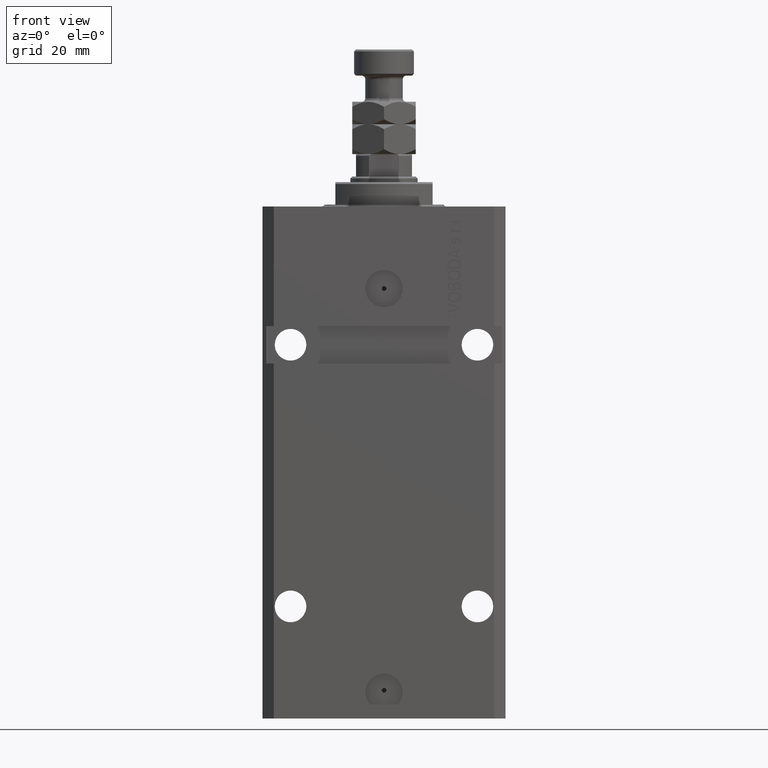
[diagram: clean part render]
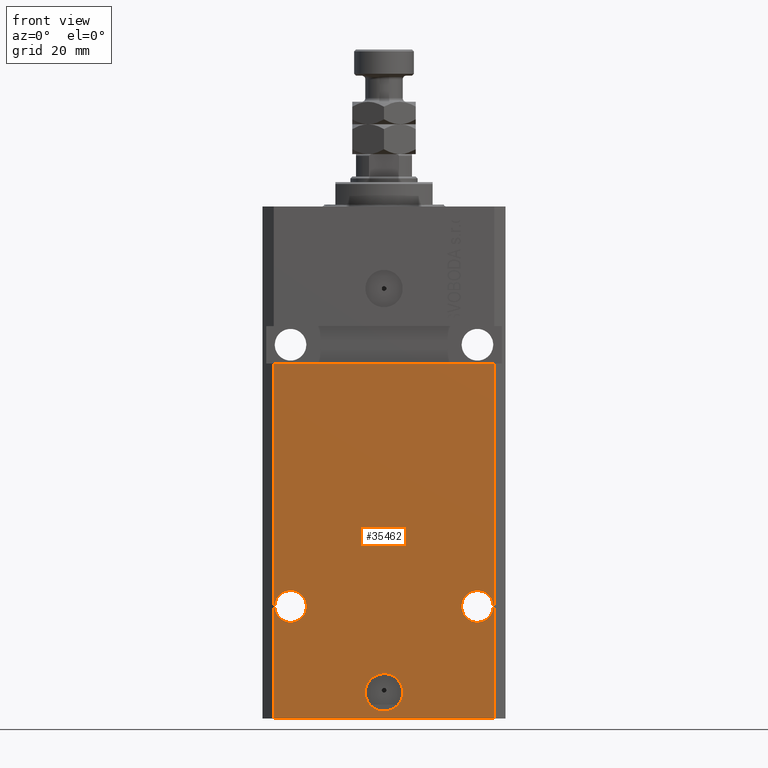
[diagram: same view with one face highlighted and labeled with its STEP entity id]
A machine part, front view. The second image highlights one B-rep face of the part: STEP entity #35462.
In plain terms, the highlighted planar face has unit normal (0, -1, 0).
Its self-contained STEP definition (entity closure, byte-faithful):
#142 = LINE ( 'NONE', #33032, #7918 ) ;
#614 = DIRECTION ( 'NONE',  ( 0.000000000000000000, 0.000000000000000000, 1.000000000000000000 ) ) ;
#779 = AXIS2_PLACEMENT_3D ( 'NONE', #14859, #37272, #4374 ) ;
#1051 = CIRCLE ( 'NONE', #17043, 4.249999999989050536 ) ;
#1056 = CIRCLE ( 'NONE', #15507, 5.000000000000006217 ) ;
#1285 = CARTESIAN_POINT ( 'NONE',  ( 20.75000000001096012, -22.49999999999949196, -107.0000000000000000 ) ) ;
#1808 = CARTESIAN_POINT ( 'NONE',  ( 2.646188353185214061E-15, -22.49999999999949551, -130.0000000000000000 ) ) ;
#2261 = EDGE_CURVE ( 'NONE', #24339, #13529, #24540, .T. ) ;
#2898 = ORIENTED_EDGE ( 'NONE', *, *, #43312, .F. ) ;
#3728 = DIRECTION ( 'NONE',  ( 1.176083712526788232E-16, -1.000000000000000000, 0.000000000000000000 ) ) ;
#3957 = CARTESIAN_POINT ( 'NONE',  ( -25.00000000000000355, -22.49999999999949907, -107.0000000000000000 ) ) ;
#4374 = DIRECTION ( 'NONE',  ( 1.000000000000000000, 0.000000000000000000, 0.000000000000000000 ) ) ;
#4443 = CARTESIAN_POINT ( 'NONE',  ( -29.49999999999650413, -22.49999999999949907, -137.0000000000000000 ) ) ;
#5047 = DIRECTION ( 'NONE',  ( 1.000000000000000000, 0.000000000000000000, 0.000000000000000000 ) ) ;
#5968 = CARTESIAN_POINT ( 'NONE',  ( -32.49999999999650413, -22.49999999999949907, -41.99999999999999289 ) ) ;
#6515 = EDGE_CURVE ( 'NONE', #34668, #42616, #30671, .T. ) ;
#6574 = AXIS2_PLACEMENT_3D ( 'NONE', #3957, #3728, #33281 ) ;
#6690 = DIRECTION ( 'NONE',  ( 0.000000000000000000, 0.000000000000000000, 1.000000000000000000 ) ) ;
#6838 = FACE_OUTER_BOUND ( 'NONE', #46665, .T. ) ;
#7918 = VECTOR ( 'NONE', #614, 1000.000000000000000 ) ;
#9362 = CARTESIAN_POINT ( 'NONE',  ( -25.00000000000000355, -22.49999999999949907, -107.0000000000000000 ) ) ;
#10144 = EDGE_LOOP ( 'NONE', ( #10808, #2898 ) ) ;
#10410 = FACE_BOUND ( 'NONE', #16624, .T. ) ;
#10808 = ORIENTED_EDGE ( 'NONE', *, *, #21839, .F. ) ;
#11389 = VERTEX_POINT ( 'NONE', #1285 ) ;
#12570 = ORIENTED_EDGE ( 'NONE', *, *, #13395, .F. ) ;
#12634 = CARTESIAN_POINT ( 'NONE',  ( -29.24999999998905409, -22.49999999999949907, -107.0000000000000000 ) ) ;
#12739 = EDGE_CURVE ( 'NONE', #42700, #24339, #39352, .T. ) ;
#12936 = ORIENTED_EDGE ( 'NONE', *, *, #35046, .F. ) ;
#12989 = VECTOR ( 'NONE', #39988, 1000.000000000000000 ) ;
#13395 = EDGE_CURVE ( 'NONE', #42616, #34668, #1056, .T. ) ;
#13404 = DIRECTION ( 'NONE',  ( 1.176083712526788232E-16, -1.000000000000000000, 0.000000000000000000 ) ) ;
#13529 = VERTEX_POINT ( 'NONE', #23508 ) ;
#14859 = CARTESIAN_POINT ( 'NONE',  ( 25.00000000000001066, -22.49999999999949196, -107.0000000000000000 ) ) ;
#15404 = AXIS2_PLACEMENT_3D ( 'NONE', #1808, #23483, #38046 ) ;
#15507 = AXIS2_PLACEMENT_3D ( 'NONE', #34787, #38365, #20465 ) ;
#15921 = CARTESIAN_POINT ( 'NONE',  ( -29.49999999999650413, -22.49999999999949907, -137.0000000000000000 ) ) ;
#16007 = DIRECTION ( 'NONE',  ( 1.176083712526788232E-16, -1.000000000000000000, 0.000000000000000000 ) ) ;
#16427 = AXIS2_PLACEMENT_3D ( 'NONE', #41047, #16007, #5047 ) ;
#16624 = EDGE_LOOP ( 'NONE', ( #35386, #12570 ) ) ;
#17043 = AXIS2_PLACEMENT_3D ( 'NONE', #9362, #13404, #30835 ) ;
#17533 = EDGE_CURVE ( 'NONE', #41538, #11389, #45374, .T. ) ;
#17929 = CARTESIAN_POINT ( 'NONE',  ( -20.75000000001095302, -22.49999999999949907, -107.0000000000000000 ) ) ;
#19510 = CARTESIAN_POINT ( 'NONE',  ( -5.000000000000003553, -22.49999999999949551, -130.0000000000000000 ) ) ;
#20142 = ORIENTED_EDGE ( 'NONE', *, *, #12739, .F. ) ;
#20465 = DIRECTION ( 'NONE',  ( 1.000000000000000000, 0.000000000000000000, 0.000000000000000000 ) ) ;
#20585 = DIRECTION ( 'NONE',  ( 1.176083712526788232E-16, -1.000000000000000000, 0.000000000000000000 ) ) ;
#21325 = CIRCLE ( 'NONE', #779, 4.249999999989050536 ) ;
#21839 = EDGE_CURVE ( 'NONE', #27250, #35321, #27128, .T. ) ;
#23483 = DIRECTION ( 'NONE',  ( 1.176083712526788232E-16, -1.000000000000000000, 0.000000000000000000 ) ) ;
#23508 = CARTESIAN_POINT ( 'NONE',  ( 29.49999999999650058, -22.49999999999949196, -41.99999999999998579 ) ) ;
#24339 = VERTEX_POINT ( 'NONE', #33954 ) ;
#24540 = LINE ( 'NONE', #5968, #38910 ) ;
#24944 = FACE_BOUND ( 'NONE', #38067, .T. ) ;
#25184 = LINE ( 'NONE', #4443, #12989 ) ;
#26810 = CARTESIAN_POINT ( 'NONE',  ( 29.49999999999650413, -22.49999999999949196, -137.0000000000000000 ) ) ;
#27128 = CIRCLE ( 'NONE', #6574, 4.249999999989050536 ) ;
#27250 = VERTEX_POINT ( 'NONE', #17929 ) ;
#28370 = CARTESIAN_POINT ( 'NONE',  ( -29.49999999999650413, -22.49999999999949907, -137.0000000000000000 ) ) ;
#30213 = VERTEX_POINT ( 'NONE', #26810 ) ;
#30671 = CIRCLE ( 'NONE', #15404, 5.000000000000006217 ) ;
#30835 = DIRECTION ( 'NONE',  ( -1.000000000000000000, 0.000000000000000000, 0.000000000000000000 ) ) ;
#33032 = CARTESIAN_POINT ( 'NONE',  ( 29.49999999999650413, -22.49999999999949196, -137.0000000000000000 ) ) ;
#33281 = DIRECTION ( 'NONE',  ( -1.000000000000000000, 0.000000000000000000, 0.000000000000000000 ) ) ;
#33954 = CARTESIAN_POINT ( 'NONE',  ( -29.49999999999650413, -22.49999999999949907, -41.99999999999999289 ) ) ;
#34668 = VERTEX_POINT ( 'NONE', #39731 ) ;
#34787 = CARTESIAN_POINT ( 'NONE',  ( 2.646188353185214061E-15, -22.49999999999949551, -130.0000000000000000 ) ) ;
#35046 = EDGE_CURVE ( 'NONE', #11389, #41538, #21325, .T. ) ;
#35138 = DIRECTION ( 'NONE',  ( 1.000000000000000000, 1.176083712526788232E-16, 0.000000000000000000 ) ) ;
#35321 = VERTEX_POINT ( 'NONE', #12634 ) ;
#35386 = ORIENTED_EDGE ( 'NONE', *, *, #6515, .F. ) ;
#35441 = ORIENTED_EDGE ( 'NONE', *, *, #36322, .T. ) ;
#35462 = ADVANCED_FACE ( 'NONE', ( #10410, #24944, #39502, #6838 ), #35927, .T. ) ;
#35927 = PLANE ( 'NONE',  #44964 ) ;
#36077 = VECTOR ( 'NONE', #6690, 1000.000000000000000 ) ;
#36322 = EDGE_CURVE ( 'NONE', #42700, #30213, #25184, .T. ) ;
#37081 = ORIENTED_EDGE ( 'NONE', *, *, #43494, .T. ) ;
#37272 = DIRECTION ( 'NONE',  ( 1.176083712526788232E-16, -1.000000000000000000, 0.000000000000000000 ) ) ;
#37605 = CARTESIAN_POINT ( 'NONE',  ( -29.49999999999650413, -22.49999999999949907, -137.0000000000000000 ) ) ;
#38046 = DIRECTION ( 'NONE',  ( 1.000000000000000000, 0.000000000000000000, 0.000000000000000000 ) ) ;
#38067 = EDGE_LOOP ( 'NONE', ( #38074, #12936 ) ) ;
#38074 = ORIENTED_EDGE ( 'NONE', *, *, #17533, .F. ) ;
#38365 = DIRECTION ( 'NONE',  ( 1.176083712526788232E-16, -1.000000000000000000, 0.000000000000000000 ) ) ;
#38910 = VECTOR ( 'NONE', #39107, 1000.000000000000000 ) ;
#39034 = ORIENTED_EDGE ( 'NONE', *, *, #2261, .F. ) ;
#39107 = DIRECTION ( 'NONE',  ( 1.000000000000000000, 1.067522139062765303E-16, 1.067522139062765303E-16 ) ) ;
#39352 = LINE ( 'NONE', #28370, #36077 ) ;
#39502 = FACE_BOUND ( 'NONE', #10144, .T. ) ;
#39731 = CARTESIAN_POINT ( 'NONE',  ( 5.000000000000008882, -22.49999999999949551, -130.0000000000000000 ) ) ;
#39988 = DIRECTION ( 'NONE',  ( 1.000000000000000000, 1.176083712526788232E-16, 0.000000000000000000 ) ) ;
#40310 = CARTESIAN_POINT ( 'NONE',  ( 29.24999999998906119, -22.49999999999949196, -107.0000000000000000 ) ) ;
#41047 = CARTESIAN_POINT ( 'NONE',  ( 25.00000000000001066, -22.49999999999949196, -107.0000000000000000 ) ) ;
#41538 = VERTEX_POINT ( 'NONE', #40310 ) ;
#42616 = VERTEX_POINT ( 'NONE', #19510 ) ;
#42700 = VERTEX_POINT ( 'NONE', #15921 ) ;
#43312 = EDGE_CURVE ( 'NONE', #35321, #27250, #1051, .T. ) ;
#43494 = EDGE_CURVE ( 'NONE', #30213, #13529, #142, .T. ) ;
#44964 = AXIS2_PLACEMENT_3D ( 'NONE', #37605, #20585, #35138 ) ;
#45374 = CIRCLE ( 'NONE', #16427, 4.249999999989050536 ) ;
#46665 = EDGE_LOOP ( 'NONE', ( #39034, #20142, #35441, #37081 ) ) ;